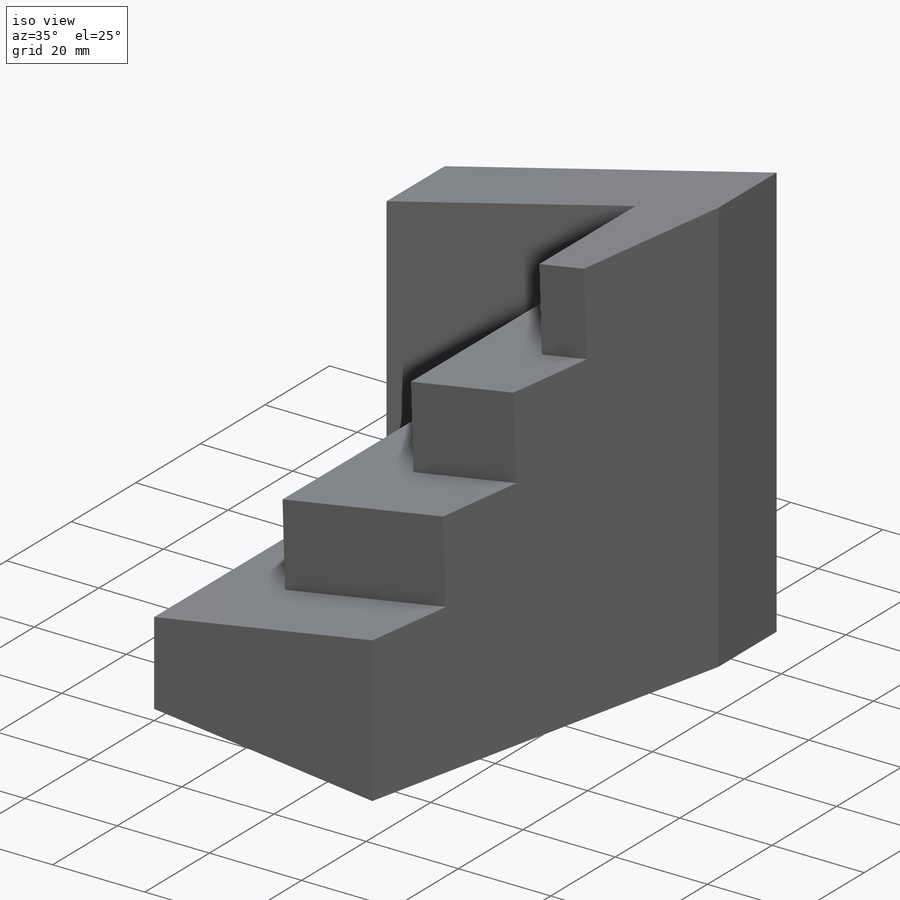
[diagram: iso view]
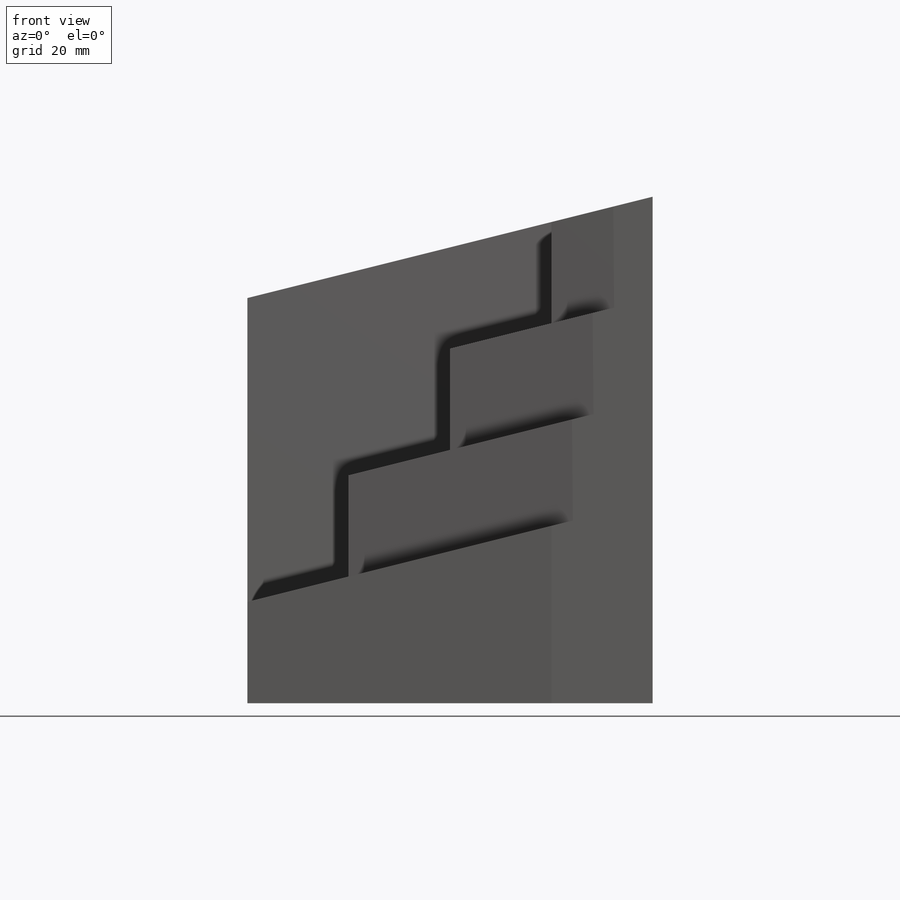
[diagram: front view]
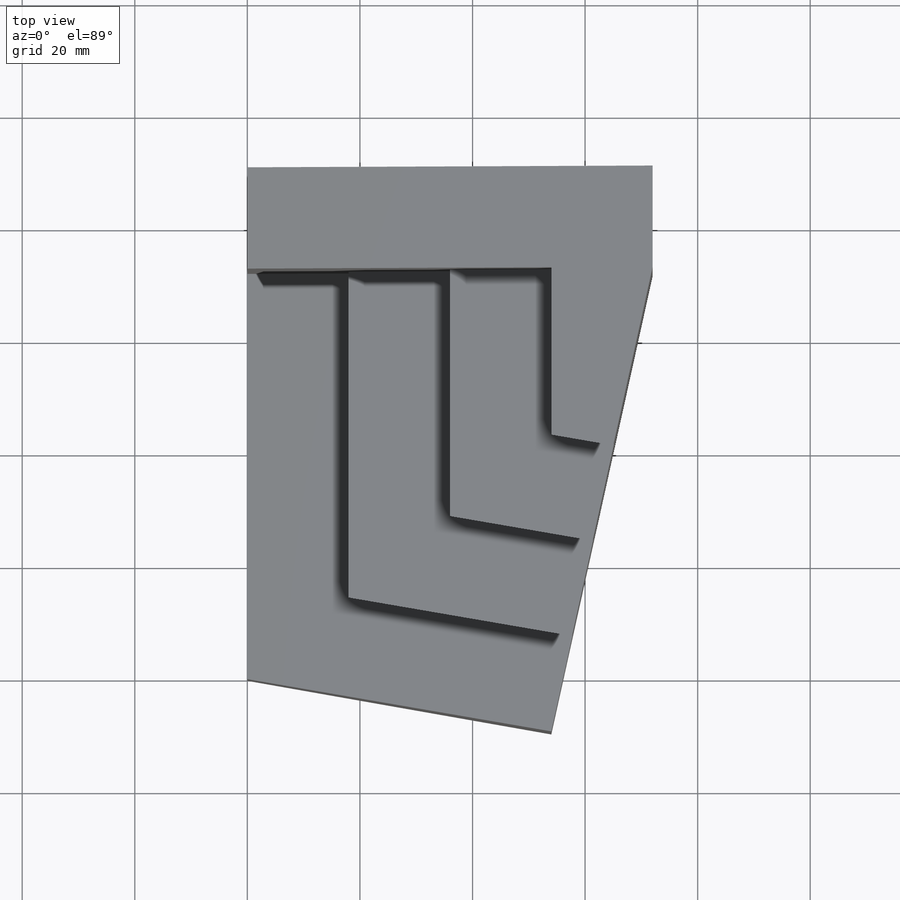
[diagram: top view]
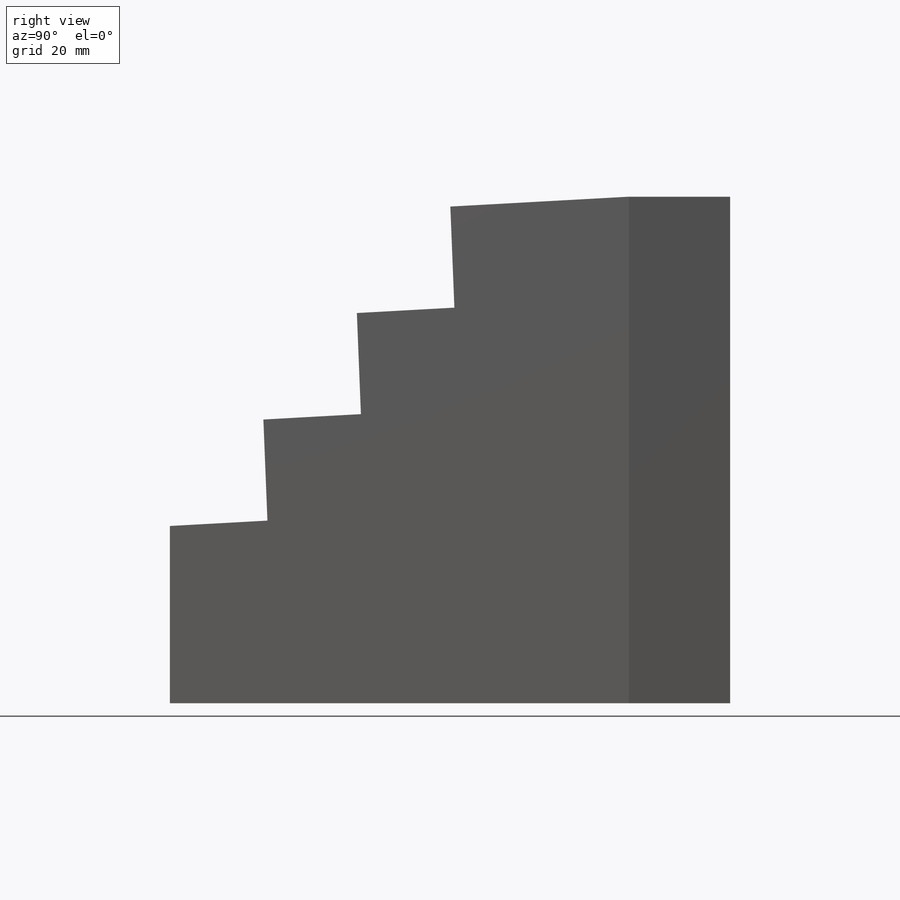
[diagram: right view]
SOLIDWORKS PART (.sldprt)
format: sldprt  version: not decoded by parser v0  size: 365,056 bytes
history: native  units: mm
features: sketch x6, cut_extrude x5, material x1, extrude x1 (+14 scaffold rows collapsed)
feature tree (27):
  scaffold x14  (default folders/planes/origin — collapsed)
  material  "Material <not specified>"
  sketch  "Sketch1"  dims[c1.D1=18.0mm c1.D2=72.0mm c1.D3=90.0mm c1.D4=90.0mm c2.D4=100.0deg c2.D5=54.0mm]
  extrude  "Main Block"  Depth=90mm
  sketch  "Sketch4"  dims[D1=18.0mm]
  cut_extrude  "Main Cutout"  Depth=72mm
  sketch  "Sketch5"  dims[D1=18.0mm]
  cut_extrude  "Top Slope Cut"  Depth=90mm
  sketch  "Sketch6"  dims[D1=18.0mm]
  cut_extrude  "First Step Cut"  Depth=90mm
  sketch  "Sketch7"  dims[D1=18.0mm]
  cut_extrude  "Second Step Cut"  Depth=50mm
  sketch  "Sketch8"  dims[D1=18.0mm]
  cut_extrude  "Third Step Cut"  Depth=20mm
decode coverage: 12 of 12 modeling features carry decoded parameters
note: suppression state not decoded; provenance and decode notes live in map.json
